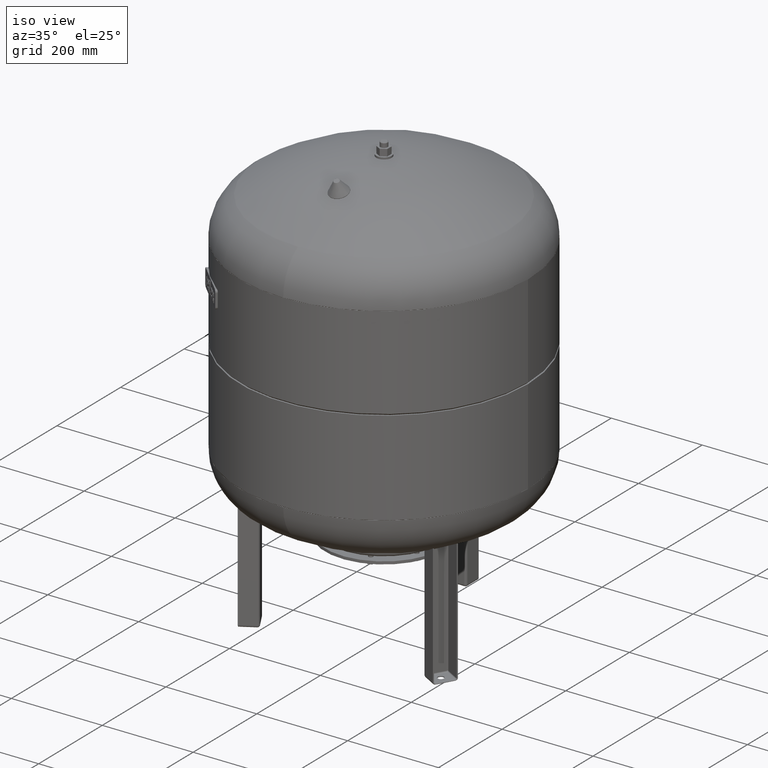
[diagram: clean part render]
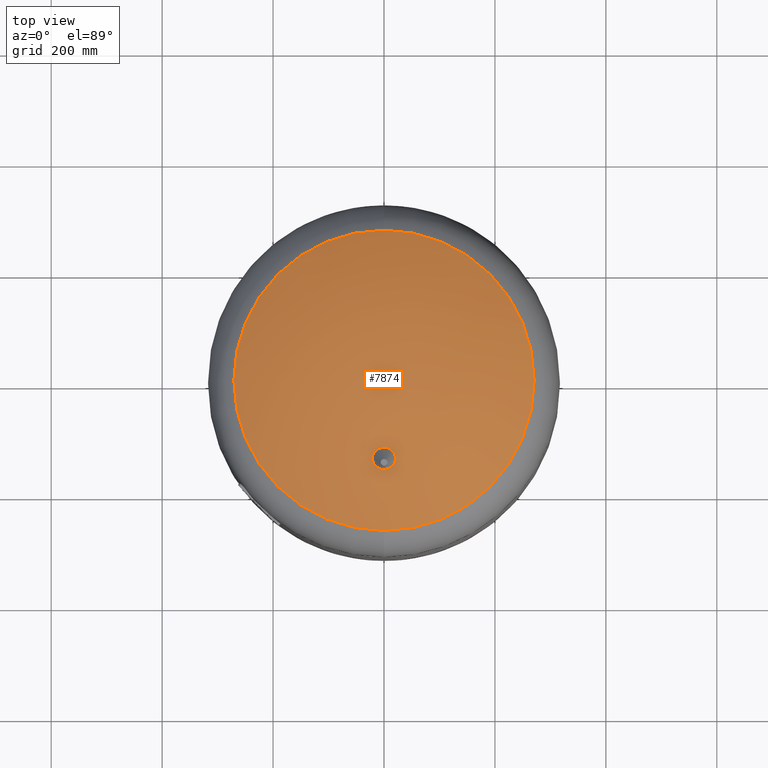
[diagram: tour spotlight — one face highlighted and labeled with its STEP entity id]
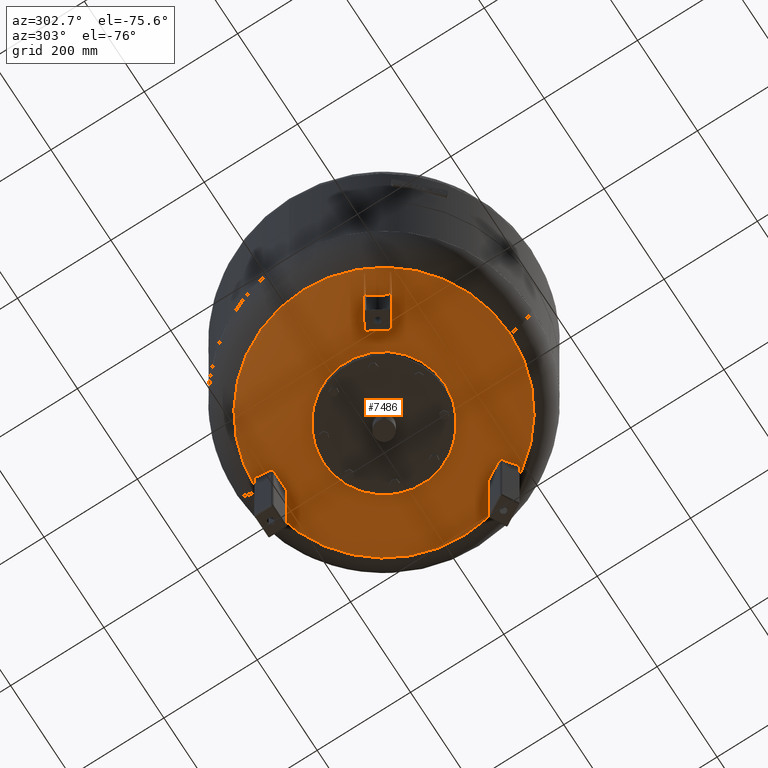
[diagram: tour spotlight — one face highlighted and labeled with its STEP entity id]
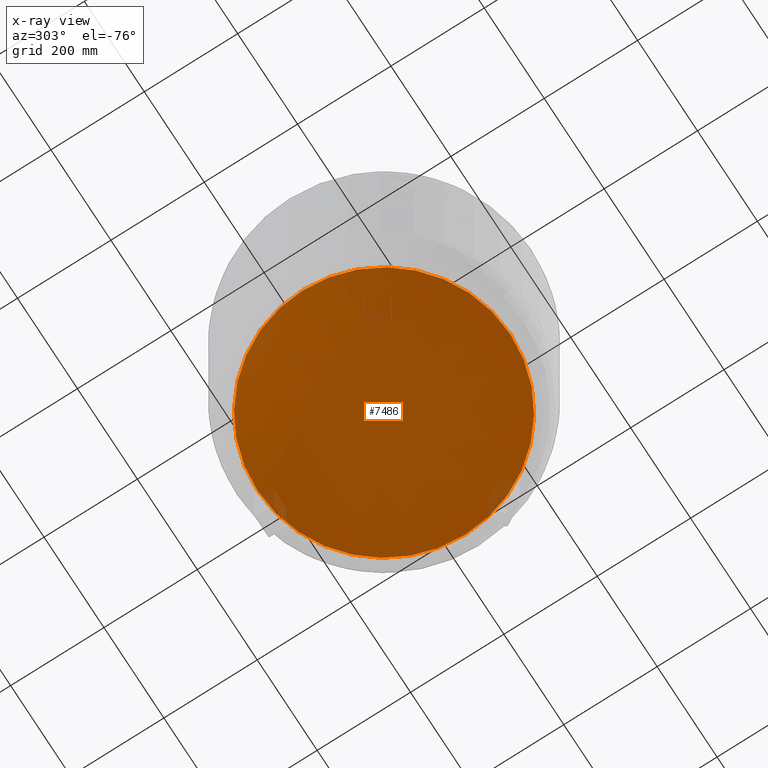
[diagram: x-ray of the same camera — body ghosted, this tour face saturated]
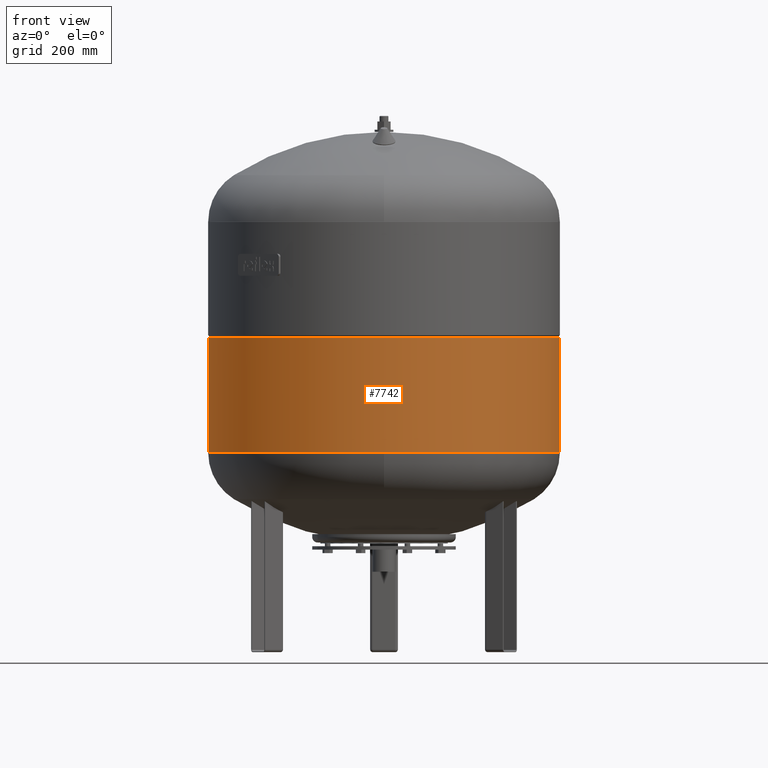
[diagram: tour spotlight — one face highlighted and labeled with its STEP entity id]
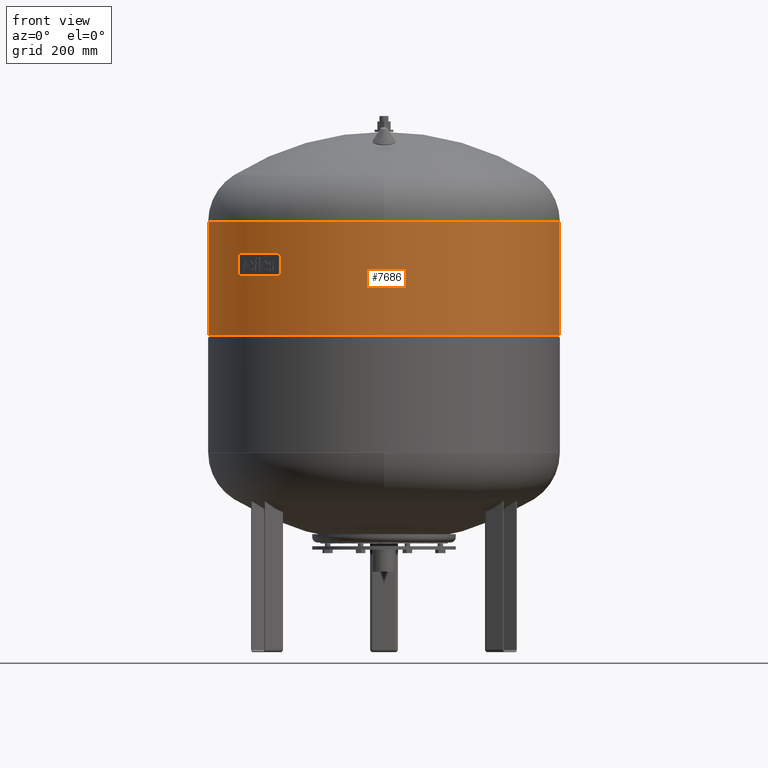
[diagram: tour spotlight — one face highlighted and labeled with its STEP entity id]
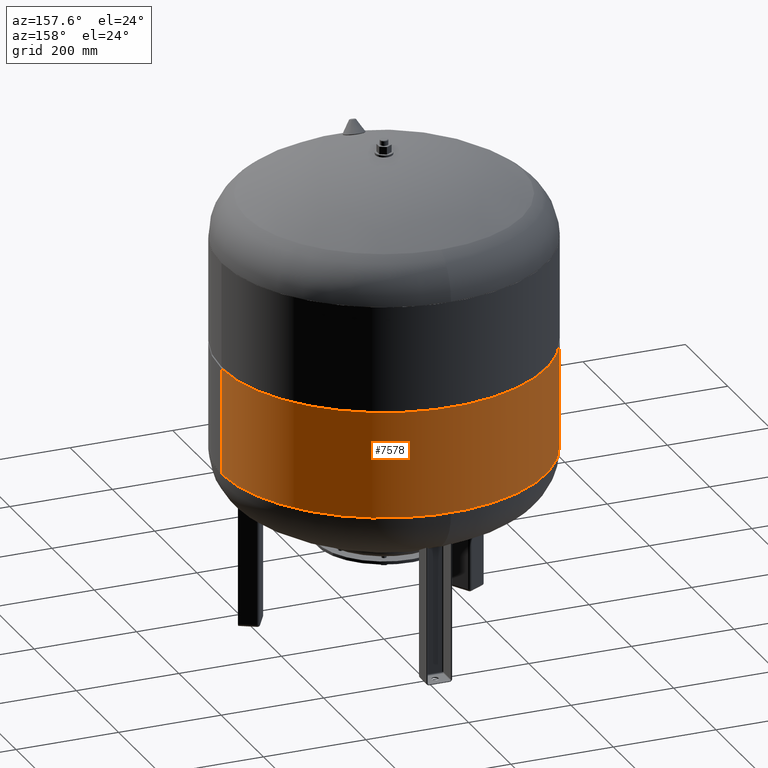
[diagram: tour spotlight — one face highlighted and labeled with its STEP entity id]
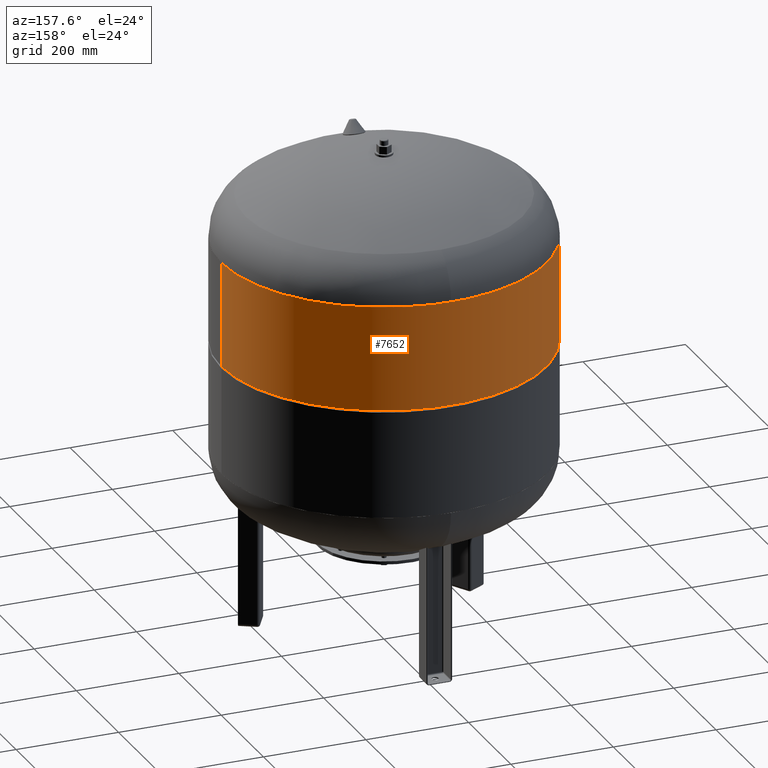
[diagram: tour spotlight — one face highlighted and labeled with its STEP entity id]
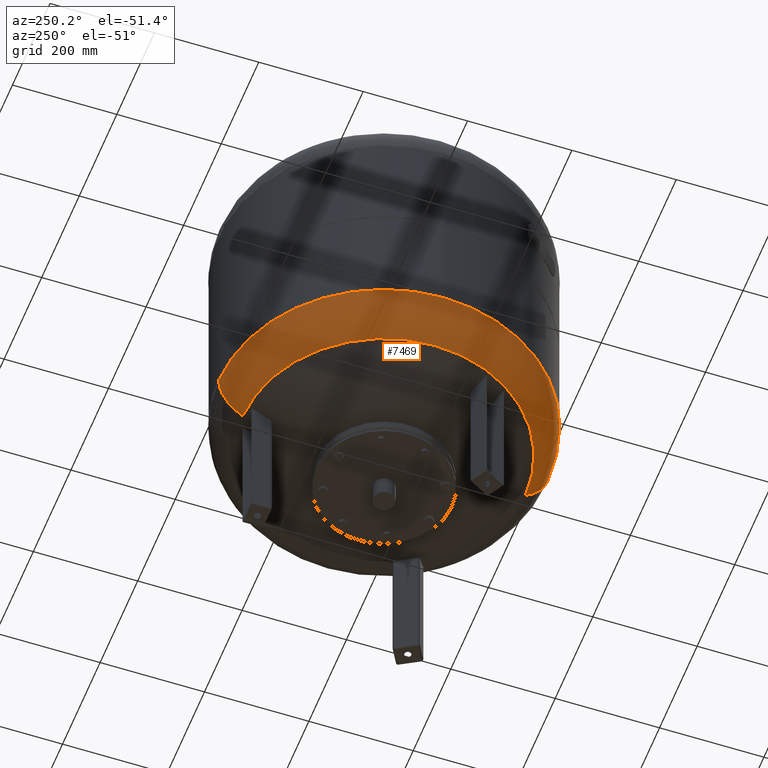
[diagram: tour spotlight — one face highlighted and labeled with its STEP entity id]
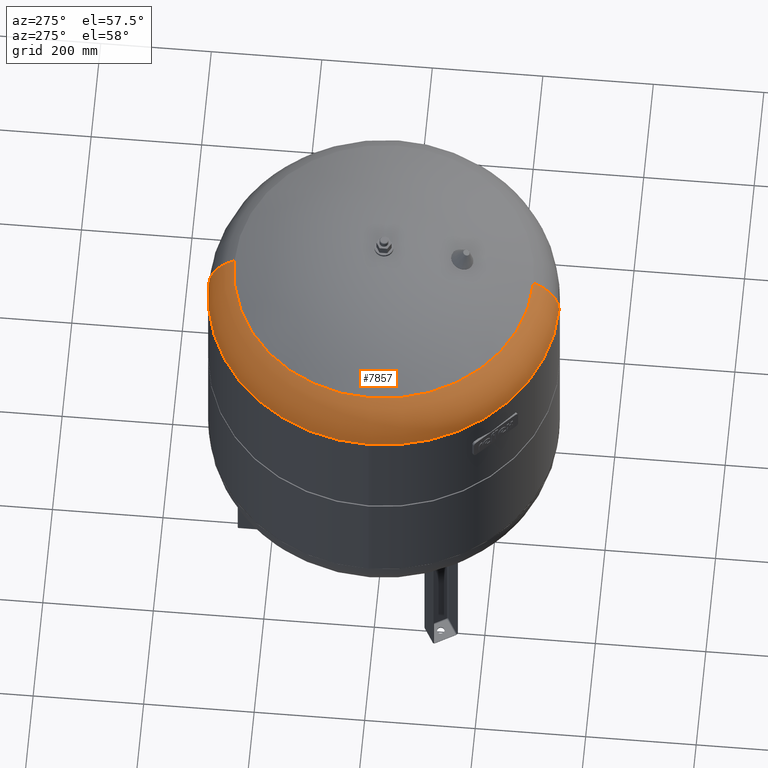
[diagram: tour spotlight — one face highlighted and labeled with its STEP entity id]
A machine part: a face-by-face anatomy tour. The part has 394 B-rep faces; the first image is the clean iso view, then the 8 largest visible faces are spotlighted one at a time (largest first), each with its STEP entity span.

Face 1 — top view, entity #7874. In plain terms, the highlighted spherical surface has radius 509 mm.
Definition (entity closure, byte-faithful):
#7813=CARTESIAN_POINT('',(8.065826E-015,270.639024390243830,860.086439681297630));
#7814=VERTEX_POINT('',#7813);
#7830=CARTESIAN_POINT('',(-2.507680E-014,-270.639024390243830,860.086439681297410));
#7831=VERTEX_POINT('',#7830);
#7839=CARTESIAN_POINT('',(-270.639024390243830,2.385415E-014,860.086439681297630));
#7840=VERTEX_POINT('',#7839);
#7841=CARTESIAN_POINT('',(-7.495146E-015,2.385415E-014,860.086439681297520));
#7842=DIRECTION('',(0.0,0.0,-1.0));
#7843=DIRECTION('',(-1.0,0.0,0.0));
#7844=AXIS2_PLACEMENT_3D('',#7841,#7842,#7843);
#7845=CIRCLE('',#7844,270.639024390243830);
#7846=EDGE_CURVE('',#7831,#7840,#7845,.T.);
#7848=CARTESIAN_POINT('',(-7.495146E-015,2.385415E-014,860.086439681297520));
#7849=DIRECTION('',(0.0,0.0,-1.0));
#7850=DIRECTION('',(-1.0,0.0,0.0));
#7851=AXIS2_PLACEMENT_3D('',#7848,#7849,#7850);
#7852=CIRCLE('',#7851,270.639024390243830);
#7853=EDGE_CURVE('',#7840,#7814,#7852,.T.);
#7858=CARTESIAN_POINT('',(-1.005746E-013,1.558363E-013,428.999999999999940));
#7859=DIRECTION('',(0.0,1.0,0.0));
#7860=DIRECTION('',(1.0,0.0,0.0));
#7861=AXIS2_PLACEMENT_3D('',#7858,#7859,#7860);
#7862=SPHERICAL_SURFACE('',#7861,509.000000000000060);
#7863=ORIENTED_EDGE('',*,*,#7853,.F.);
#7864=ORIENTED_EDGE('',*,*,#7846,.F.);
#7865=CARTESIAN_POINT('',(-7.495146E-015,2.385415E-014,860.086439681297520));
#7866=DIRECTION('',(0.0,0.0,-1.0));
#7867=DIRECTION('',(-1.0,0.0,0.0));
#7868=AXIS2_PLACEMENT_3D('',#7865,#7866,#7867);
#7869=CIRCLE('',#7868,270.639024390243830);
#7870=EDGE_CURVE('',#7814,#7831,#7869,.T.);
#7871=ORIENTED_EDGE('',*,*,#7870,.F.);
#7872=EDGE_LOOP('',(#7863,#7864,#7871));
#7873=FACE_OUTER_BOUND('',#7872,.T.);
#7874=ADVANCED_FACE('',(#7873),#7862,.T.);

Face 2 — auxiliary view, entity #7486. An x-ray twin of the same camera follows (body ghosted, this face saturated) — the face is partly hidden behind the body. In plain terms, the highlighted spherical surface has radius 509 mm.
Definition (entity closure, byte-faithful):
#7425=CARTESIAN_POINT('',(8.065826E-015,-270.639024390243830,275.913560318702370));
#7426=VERTEX_POINT('',#7425);
#7442=CARTESIAN_POINT('',(-2.507680E-014,270.639024390243830,275.913560318702480));
#7443=VERTEX_POINT('',#7442);
#7451=CARTESIAN_POINT('',(-270.639024390243830,-1.431249E-014,275.913560318702420));
#7452=VERTEX_POINT('',#7451);
#7453=CARTESIAN_POINT('',(-7.495146E-015,-1.431249E-014,275.913560318702420));
#7454=DIRECTION('',(0.0,0.0,1.0));
#7455=DIRECTION('',(-1.0,0.0,0.0));
#7456=AXIS2_PLACEMENT_3D('',#7453,#7454,#7455);
#7457=CIRCLE('',#7456,270.639024390243830);
#7458=EDGE_CURVE('',#7443,#7452,#7457,.T.);
#7460=CARTESIAN_POINT('',(-7.495146E-015,-1.431249E-014,275.913560318702420));
#7461=DIRECTION('',(0.0,0.0,1.0));
#7462=DIRECTION('',(-1.0,0.0,0.0));
#7463=AXIS2_PLACEMENT_3D('',#7460,#7461,#7462);
#7464=CIRCLE('',#7463,270.639024390243830);
#7465=EDGE_CURVE('',#7452,#7426,#7464,.T.);
#7470=CARTESIAN_POINT('',(-1.005746E-013,-9.350178E-014,707.0));
#7471=DIRECTION('',(0.0,-1.0,0.0));
#7472=DIRECTION('',(1.0,0.0,0.0));
#7473=AXIS2_PLACEMENT_3D('',#7470,#7471,#7472);
#7474=SPHERICAL_SURFACE('',#7473,509.000000000000060);
#7475=ORIENTED_EDGE('',*,*,#7465,.F.);
#7476=ORIENTED_EDGE('',*,*,#7458,.F.);
#7477=CARTESIAN_POINT('',(-7.495146E-015,-1.431249E-014,275.913560318702420));
#7478=DIRECTION('',(0.0,0.0,1.0));
#7479=DIRECTION('',(-1.0,0.0,0.0));
#7480=AXIS2_PLACEMENT_3D('',#7477,#7478,#7479);
#7481=CIRCLE('',#7480,270.639024390243830);
#7482=EDGE_CURVE('',#7426,#7443,#7481,.T.);
#7483=ORIENTED_EDGE('',*,*,#7482,.F.);
#7484=EDGE_LOOP('',(#7475,#7476,#7483));
#7485=FACE_OUTER_BOUND('',#7484,.T.);
#7486=ADVANCED_FACE('',(#7485),#7474,.T.);

Face 3 — front view, entity #7742. In plain terms, the highlighted cylindrical surface (partial cylindrical patch) has radius 317 mm, axis along (-0, 0, -1).
Definition (entity closure, byte-faithful):
#7542=CARTESIAN_POINT('',(317.0,3.882130E-014,360.0));
#7543=VERTEX_POINT('',#7542);
#7544=CARTESIAN_POINT('',(316.999999999999940,3.882130E-014,568.0));
#7545=VERTEX_POINT('',#7544);
#7546=CARTESIAN_POINT('',(317.0,3.882130E-014,360.0));
#7547=DIRECTION('',(0.0,0.0,1.0));
#7548=VECTOR('',#7547,208.0);
#7549=LINE('',#7546,#7548);
#7550=EDGE_CURVE('',#7543,#7545,#7549,.T.);
#7552=CARTESIAN_POINT('',(-317.0,-1.282117E-018,360.0));
#7553=VERTEX_POINT('',#7552);
#7561=CARTESIAN_POINT('',(-317.0,-1.282117E-018,568.000000000000110));
#7562=VERTEX_POINT('',#7561);
#7563=CARTESIAN_POINT('',(-317.0,-1.282117E-018,360.0));
#7564=DIRECTION('',(0.0,0.0,1.0));
#7565=VECTOR('',#7564,208.000000000000110);
#7566=LINE('',#7563,#7565);
#7567=EDGE_CURVE('',#7553,#7562,#7566,.T.);
#7710=CARTESIAN_POINT('',(-4.065149E-031,4.830380E-046,568.0));
#7711=DIRECTION('',(0.0,0.0,-1.0));
#7712=DIRECTION('',(1.0,0.0,0.0));
#7713=AXIS2_PLACEMENT_3D('',#7710,#7711,#7712);
#7714=CIRCLE('',#7713,316.999999999999940);
#7715=EDGE_CURVE('',#7545,#7562,#7714,.T.);
#7725=CARTESIAN_POINT('',(-4.392344E-015,1.021843E-030,464.0));
#7726=DIRECTION('',(-4.223408E-017,9.825415E-033,-1.0));
#7727=DIRECTION('',(1.0,0.0,0.0));
#7728=AXIS2_PLACEMENT_3D('',#7725,#7726,#7727);
#7729=CYLINDRICAL_SURFACE('',#7728,317.0);
#7730=ORIENTED_EDGE('',*,*,#7550,.T.);
#7731=ORIENTED_EDGE('',*,*,#7715,.T.);
#7732=ORIENTED_EDGE('',*,*,#7567,.F.);
#7733=CARTESIAN_POINT('',(-8.784689E-015,2.043686E-030,360.0));
#7734=DIRECTION('',(0.0,0.0,-1.0));
#7735=DIRECTION('',(1.0,0.0,0.0));
#7736=AXIS2_PLACEMENT_3D('',#7733,#7734,#7735);
#7737=CIRCLE('',#7736,317.0);
#7738=EDGE_CURVE('',#7543,#7553,#7737,.T.);
#7739=ORIENTED_EDGE('',*,*,#7738,.F.);
#7740=EDGE_LOOP('',(#7730,#7731,#7732,#7739));
#7741=FACE_OUTER_BOUND('',#7740,.T.);
#7742=ADVANCED_FACE('',(#7741),#7729,.T.);

Face 4 — front view, entity #7686. In plain terms, the highlighted cylindrical surface (partial cylindrical patch) has radius 317 mm, axis along (-0, 0, -1).
Definition (entity closure, byte-faithful):
#7586=CARTESIAN_POINT('',(316.999999999999830,3.882130E-014,571.500000000000000));
#7587=VERTEX_POINT('',#7586);
#7603=CARTESIAN_POINT('',(-316.999999999999940,-1.282117E-018,571.500000000000000));
#7604=VERTEX_POINT('',#7603);
#7626=CARTESIAN_POINT('',(317.0,3.882130E-014,776.0));
#7627=VERTEX_POINT('',#7626);
#7628=CARTESIAN_POINT('',(316.999999999999830,3.882130E-014,571.500000000000000));
#7629=DIRECTION('',(0.0,0.0,1.0));
#7630=VECTOR('',#7629,204.500000000000000);
#7631=LINE('',#7628,#7630);
#7632=EDGE_CURVE('',#7587,#7627,#7631,.T.);
#7635=CARTESIAN_POINT('',(-316.999999999999940,-1.282117E-018,776.000000000000110));
#7636=VERTEX_POINT('',#7635);
#7637=CARTESIAN_POINT('',(-316.999999999999940,-1.282117E-018,571.500000000000000));
#7638=DIRECTION('',(0.0,0.0,1.0));
#7639=VECTOR('',#7638,204.500000000000110);
#7640=LINE('',#7637,#7639);
#7641=EDGE_CURVE('',#7604,#7636,#7640,.T.);
#7658=CARTESIAN_POINT('',(8.784689E-015,-2.043686E-030,776.000000000000110));
#7659=DIRECTION('',(0.0,0.0,-1.0));
#7660=DIRECTION('',(1.0,0.0,0.0));
#7661=AXIS2_PLACEMENT_3D('',#7658,#7659,#7660);
#7662=CIRCLE('',#7661,317.0);
#7663=EDGE_CURVE('',#7627,#7636,#7662,.T.);
#7669=CARTESIAN_POINT('',(5.224356E-015,-1.215404E-030,691.700000000000050));
#7670=DIRECTION('',(-4.223408E-017,9.825415E-033,-1.0));
#7671=DIRECTION('',(1.0,0.0,0.0));
#7672=AXIS2_PLACEMENT_3D('',#7669,#7670,#7671);
#7673=CYLINDRICAL_SURFACE('',#7672,316.999999999999940);
#7674=ORIENTED_EDGE('',*,*,#7632,.T.);
#7675=ORIENTED_EDGE('',*,*,#7663,.T.);
#7676=ORIENTED_EDGE('',*,*,#7641,.F.);
#7677=CARTESIAN_POINT('',(1.478193E-016,-3.438895E-032,571.500000000000000));
#7678=DIRECTION('',(0.0,0.0,-1.0));
#7679=DIRECTION('',(1.0,0.0,0.0));
#7680=AXIS2_PLACEMENT_3D('',#7677,#7678,#7679);
#7681=CIRCLE('',#7680,316.999999999999830);
#7682=EDGE_CURVE('',#7587,#7604,#7681,.T.);
#7683=ORIENTED_EDGE('',*,*,#7682,.F.);
#7684=EDGE_LOOP('',(#7674,#7675,#7676,#7683));
#7685=FACE_OUTER_BOUND('',#7684,.T.);
#7686=ADVANCED_FACE('',(#7685),#7673,.T.);

Face 5 — auxiliary view, entity #7578. In plain terms, the highlighted cylindrical surface (partial cylindrical patch) has radius 317 mm, axis along (-0, 0, -1).
Definition (entity closure, byte-faithful):
#7537=CARTESIAN_POINT('',(-4.392344E-015,1.021843E-030,464.0));
#7538=DIRECTION('',(-4.223408E-017,9.825415E-033,-1.0));
#7539=DIRECTION('',(1.0,0.0,0.0));
#7540=AXIS2_PLACEMENT_3D('',#7537,#7538,#7539);
#7541=CYLINDRICAL_SURFACE('',#7540,317.0);
#7542=CARTESIAN_POINT('',(317.0,3.882130E-014,360.0));
#7543=VERTEX_POINT('',#7542);
#7544=CARTESIAN_POINT('',(316.999999999999940,3.882130E-014,568.0));
#7545=VERTEX_POINT('',#7544);
#7546=CARTESIAN_POINT('',(317.0,3.882130E-014,360.0));
#7547=DIRECTION('',(0.0,0.0,1.0));
#7548=VECTOR('',#7547,208.0);
#7549=LINE('',#7546,#7548);
#7550=EDGE_CURVE('',#7543,#7545,#7549,.T.);
#7551=ORIENTED_EDGE('',*,*,#7550,.F.);
#7552=CARTESIAN_POINT('',(-317.0,-1.282117E-018,360.0));
#7553=VERTEX_POINT('',#7552);
#7554=CARTESIAN_POINT('',(-8.784689E-015,2.043686E-030,360.0));
#7555=DIRECTION('',(0.0,0.0,-1.0));
#7556=DIRECTION('',(1.0,0.0,0.0));
#7557=AXIS2_PLACEMENT_3D('',#7554,#7555,#7556);
#7558=CIRCLE('',#7557,317.0);
#7559=EDGE_CURVE('',#7553,#7543,#7558,.T.);
#7560=ORIENTED_EDGE('',*,*,#7559,.F.);
#7561=CARTESIAN_POINT('',(-317.0,-1.282117E-018,568.000000000000110));
#7562=VERTEX_POINT('',#7561);
#7563=CARTESIAN_POINT('',(-317.0,-1.282117E-018,360.0));
#7564=DIRECTION('',(0.0,0.0,1.0));
#7565=VECTOR('',#7564,208.000000000000110);
#7566=LINE('',#7563,#7565);
#7567=EDGE_CURVE('',#7553,#7562,#7566,.T.);
#7568=ORIENTED_EDGE('',*,*,#7567,.T.);
#7569=CARTESIAN_POINT('',(-4.065149E-031,4.830380E-046,568.0));
#7570=DIRECTION('',(0.0,0.0,-1.0));
#7571=DIRECTION('',(1.0,0.0,0.0));
#7572=AXIS2_PLACEMENT_3D('',#7569,#7570,#7571);
#7573=CIRCLE('',#7572,316.999999999999940);
#7574=EDGE_CURVE('',#7562,#7545,#7573,.T.);
#7575=ORIENTED_EDGE('',*,*,#7574,.T.);
#7576=EDGE_LOOP('',(#7551,#7560,#7568,#7575));
#7577=FACE_OUTER_BOUND('',#7576,.T.);
#7578=ADVANCED_FACE('',(#7577),#7541,.T.);

Face 6 — auxiliary view, entity #7652. In plain terms, the highlighted cylindrical surface (partial cylindrical patch) has radius 317 mm, axis along (-0, 0, -1).
Definition (entity closure, byte-faithful):
#7586=CARTESIAN_POINT('',(316.999999999999830,3.882130E-014,571.500000000000000));
#7587=VERTEX_POINT('',#7586);
#7603=CARTESIAN_POINT('',(-316.999999999999940,-1.282117E-018,571.500000000000000));
#7604=VERTEX_POINT('',#7603);
#7611=CARTESIAN_POINT('',(1.478193E-016,-3.438895E-032,571.500000000000000));
#7612=DIRECTION('',(0.0,0.0,-1.0));
#7613=DIRECTION('',(1.0,0.0,0.0));
#7614=AXIS2_PLACEMENT_3D('',#7611,#7612,#7613);
#7615=CIRCLE('',#7614,316.999999999999830);
#7616=EDGE_CURVE('',#7604,#7587,#7615,.T.);
#7621=CARTESIAN_POINT('',(5.224356E-015,-1.215404E-030,691.700000000000050));
#7622=DIRECTION('',(-4.223408E-017,9.825415E-033,-1.0));
#7623=DIRECTION('',(1.0,0.0,0.0));
#7624=AXIS2_PLACEMENT_3D('',#7621,#7622,#7623);
#7625=CYLINDRICAL_SURFACE('',#7624,316.999999999999940);
#7626=CARTESIAN_POINT('',(317.0,3.882130E-014,776.0));
#7627=VERTEX_POINT('',#7626);
#7628=CARTESIAN_POINT('',(316.999999999999830,3.882130E-014,571.500000000000000));
#7629=DIRECTION('',(0.0,0.0,1.0));
#7630=VECTOR('',#7629,204.500000000000000);
#7631=LINE('',#7628,#7630);
#7632=EDGE_CURVE('',#7587,#7627,#7631,.T.);
#7633=ORIENTED_EDGE('',*,*,#7632,.F.);
#7634=ORIENTED_EDGE('',*,*,#7616,.F.);
#7635=CARTESIAN_POINT('',(-316.999999999999940,-1.282117E-018,776.000000000000110));
#7636=VERTEX_POINT('',#7635);
#7637=CARTESIAN_POINT('',(-316.999999999999940,-1.282117E-018,571.500000000000000));
#7638=DIRECTION('',(0.0,0.0,1.0));
#7639=VECTOR('',#7638,204.500000000000110);
#7640=LINE('',#7637,#7639);
#7641=EDGE_CURVE('',#7604,#7636,#7640,.T.);
#7642=ORIENTED_EDGE('',*,*,#7641,.T.);
#7643=CARTESIAN_POINT('',(8.784689E-015,-2.043686E-030,776.000000000000110));
#7644=DIRECTION('',(0.0,0.0,-1.0));
#7645=DIRECTION('',(1.0,0.0,0.0));
#7646=AXIS2_PLACEMENT_3D('',#7643,#7644,#7645);
#7647=CIRCLE('',#7646,317.0);
#7648=EDGE_CURVE('',#7636,#7627,#7647,.T.);
#7649=ORIENTED_EDGE('',*,*,#7648,.T.);
#7650=EDGE_LOOP('',(#7633,#7634,#7642,#7649));
#7651=FACE_OUTER_BOUND('',#7650,.T.);
#7652=ADVANCED_FACE('',(#7651),#7625,.T.);

Face 7 — auxiliary view, entity #7469. In plain terms, the highlighted toroidal blend (fillet) surface has major radius 218 mm and minor (blend) radius 99 mm.
Definition (entity closure, byte-faithful):
#7374=CARTESIAN_POINT('',(-317.000000000000060,-2.971473E-014,359.759449372628580));
#7375=VERTEX_POINT('',#7374);
#7399=CARTESIAN_POINT('',(-3.882002E-014,317.0,359.759449372628690));
#7400=VERTEX_POINT('',#7399);
#7408=CARTESIAN_POINT('',(-1.556097E-014,-2.971473E-014,359.759449372628640));
#7409=DIRECTION('',(0.0,0.0,1.0));
#7410=DIRECTION('',(-1.0,0.0,0.0));
#7411=AXIS2_PLACEMENT_3D('',#7408,#7409,#7410);
#7412=CIRCLE('',#7411,317.000000000000060);
#7413=EDGE_CURVE('',#7400,#7375,#7412,.T.);
#7418=CARTESIAN_POINT('',(0.0,-2.971473E-014,359.759449372628640));
#7419=DIRECTION('',(-9.619823E-017,-1.836970E-016,1.0));
#7420=DIRECTION('',(0.0,-1.0,0.0));
#7421=AXIS2_PLACEMENT_3D('',#7418,#7419,#7420);
#7422=TOROIDAL_SURFACE('',#7421,218.0,99.0);
#7423=CARTESIAN_POINT('',(-3.021869E-030,-317.000000000000110,359.759449372628580));
#7424=VERTEX_POINT('',#7423);
#7425=CARTESIAN_POINT('',(8.065826E-015,-270.639024390243830,275.913560318702370));
#7426=VERTEX_POINT('',#7425);
#7427=CARTESIAN_POINT('',(0.0,-218.000000000000030,359.759449372628580));
#7428=DIRECTION('',(1.0,0.0,0.0));
#7429=DIRECTION('',(0.0,-1.0,0.0));
#7430=AXIS2_PLACEMENT_3D('',#7427,#7428,#7429);
#7431=CIRCLE('',#7430,99.0);
#7432=EDGE_CURVE('',#7424,#7426,#7431,.T.);
#7433=ORIENTED_EDGE('',*,*,#7432,.F.);
#7434=CARTESIAN_POINT('',(-1.556097E-014,-2.971473E-014,359.759449372628640));
#7435=DIRECTION('',(0.0,0.0,1.0));
#7436=DIRECTION('',(-1.0,0.0,0.0));
#7437=AXIS2_PLACEMENT_3D('',#7434,#7435,#7436);
#7438=CIRCLE('',#7437,317.000000000000060);
#7439=EDGE_CURVE('',#7375,#7424,#7438,.T.);
#7440=ORIENTED_EDGE('',*,*,#7439,.F.);
#7441=ORIENTED_EDGE('',*,*,#7413,.F.);
#7442=CARTESIAN_POINT('',(-2.507680E-014,270.639024390243830,275.913560318702480));
#7443=VERTEX_POINT('',#7442);
#7444=CARTESIAN_POINT('',(-2.669642E-014,217.999999999999970,359.759449372628690));
#7445=DIRECTION('',(-1.0,0.0,0.0));
#7446=DIRECTION('',(0.0,1.0,0.0));
#7447=AXIS2_PLACEMENT_3D('',#7444,#7445,#7446);
#7448=CIRCLE('',#7447,99.0);
#7449=EDGE_CURVE('',#7400,#7443,#7448,.T.);
#7450=ORIENTED_EDGE('',*,*,#7449,.T.);
#7451=CARTESIAN_POINT('',(-270.639024390243830,-1.431249E-014,275.913560318702420));
#7452=VERTEX_POINT('',#7451);
#7453=CARTESIAN_POINT('',(-7.495146E-015,-1.431249E-014,275.913560318702420));
#7454=DIRECTION('',(0.0,0.0,1.0));
#7455=DIRECTION('',(-1.0,0.0,0.0));
#7456=AXIS2_PLACEMENT_3D('',#7453,#7454,#7455);
#7457=CIRCLE('',#7456,270.639024390243830);
#7458=EDGE_CURVE('',#7443,#7452,#7457,.T.);
#7459=ORIENTED_EDGE('',*,*,#7458,.T.);
#7460=CARTESIAN_POINT('',(-7.495146E-015,-1.431249E-014,275.913560318702420));
#7461=DIRECTION('',(0.0,0.0,1.0));
#7462=DIRECTION('',(-1.0,0.0,0.0));
#7463=AXIS2_PLACEMENT_3D('',#7460,#7461,#7462);
#7464=CIRCLE('',#7463,270.639024390243830);
#7465=EDGE_CURVE('',#7452,#7426,#7464,.T.);
#7466=ORIENTED_EDGE('',*,*,#7465,.T.);
#7467=EDGE_LOOP('',(#7433,#7440,#7441,#7450,#7459,#7466));
#7468=FACE_OUTER_BOUND('',#7467,.T.);
#7469=ADVANCED_FACE('',(#7468),#7422,.T.);

Face 8 — auxiliary view, entity #7857. In plain terms, the highlighted toroidal blend (fillet) surface has major radius 218 mm and minor (blend) radius 99 mm.
Definition (entity closure, byte-faithful):
#7762=CARTESIAN_POINT('',(-317.000000000000060,4.952455E-014,776.240550627371480));
#7763=VERTEX_POINT('',#7762);
#7787=CARTESIAN_POINT('',(-3.882002E-014,-317.0,776.240550627371140));
#7788=VERTEX_POINT('',#7787);
#7796=CARTESIAN_POINT('',(-1.556097E-014,4.952455E-014,776.240550627371360));
#7797=DIRECTION('',(0.0,0.0,-1.0));
#7798=DIRECTION('',(-1.0,0.0,0.0));
#7799=AXIS2_PLACEMENT_3D('',#7796,#7797,#7798);
#7800=CIRCLE('',#7799,317.000000000000060);
#7801=EDGE_CURVE('',#7788,#7763,#7800,.T.);
#7806=CARTESIAN_POINT('',(0.0,4.952455E-014,776.240550627371360));
#7807=DIRECTION('',(-9.619823E-017,3.061617E-016,-1.0));
#7808=DIRECTION('',(0.0,1.0,0.0));
#7809=AXIS2_PLACEMENT_3D('',#7806,#7807,#7808);
#7810=TOROIDAL_SURFACE('',#7809,218.0,99.0);
#7811=CARTESIAN_POINT('',(1.555323E-030,317.000000000000110,776.240550627371590));
#7812=VERTEX_POINT('',#7811);
#7813=CARTESIAN_POINT('',(8.065826E-015,270.639024390243830,860.086439681297630));
#7814=VERTEX_POINT('',#7813);
#7815=CARTESIAN_POINT('',(0.0,218.000000000000060,776.240550627371480));
#7816=DIRECTION('',(1.0,0.0,0.0));
#7817=DIRECTION('',(0.0,1.0,0.0));
#7818=AXIS2_PLACEMENT_3D('',#7815,#7816,#7817);
#7819=CIRCLE('',#7818,99.0);
#7820=EDGE_CURVE('',#7812,#7814,#7819,.T.);
#7821=ORIENTED_EDGE('',*,*,#7820,.F.);
#7822=CARTESIAN_POINT('',(-1.556097E-014,4.952455E-014,776.240550627371360));
#7823=DIRECTION('',(0.0,0.0,-1.0));
#7824=DIRECTION('',(-1.0,0.0,0.0));
#7825=AXIS2_PLACEMENT_3D('',#7822,#7823,#7824);
#7826=CIRCLE('',#7825,317.000000000000060);
#7827=EDGE_CURVE('',#7763,#7812,#7826,.T.);
#7828=ORIENTED_EDGE('',*,*,#7827,.F.);
#7829=ORIENTED_EDGE('',*,*,#7801,.F.);
#7830=CARTESIAN_POINT('',(-2.507680E-014,-270.639024390243830,860.086439681297410));
#7831=VERTEX_POINT('',#7830);
#7832=CARTESIAN_POINT('',(-2.669642E-014,-217.999999999999940,776.240550627371250));
#7833=DIRECTION('',(-1.0,0.0,0.0));
#7834=DIRECTION('',(0.0,-1.0,0.0));
#7835=AXIS2_PLACEMENT_3D('',#7832,#7833,#7834);
#7836=CIRCLE('',#7835,99.0);
#7837=EDGE_CURVE('',#7788,#7831,#7836,.T.);
#7838=ORIENTED_EDGE('',*,*,#7837,.T.);
#7839=CARTESIAN_POINT('',(-270.639024390243830,2.385415E-014,860.086439681297630));
#7840=VERTEX_POINT('',#7839);
#7841=CARTESIAN_POINT('',(-7.495146E-015,2.385415E-014,860.086439681297520));
#7842=DIRECTION('',(0.0,0.0,-1.0));
#7843=DIRECTION('',(-1.0,0.0,0.0));
#7844=AXIS2_PLACEMENT_3D('',#7841,#7842,#7843);
#7845=CIRCLE('',#7844,270.639024390243830);
#7846=EDGE_CURVE('',#7831,#7840,#7845,.T.);
#7847=ORIENTED_EDGE('',*,*,#7846,.T.);
#7848=CARTESIAN_POINT('',(-7.495146E-015,2.385415E-014,860.086439681297520));
#7849=DIRECTION('',(0.0,0.0,-1.0));
#7850=DIRECTION('',(-1.0,0.0,0.0));
#7851=AXIS2_PLACEMENT_3D('',#7848,#7849,#7850);
#7852=CIRCLE('',#7851,270.639024390243830);
#7853=EDGE_CURVE('',#7840,#7814,#7852,.T.);
#7854=ORIENTED_EDGE('',*,*,#7853,.T.);
#7855=EDGE_LOOP('',(#7821,#7828,#7829,#7838,#7847,#7854));
#7856=FACE_OUTER_BOUND('',#7855,.T.);
#7857=ADVANCED_FACE('',(#7856),#7810,.T.);